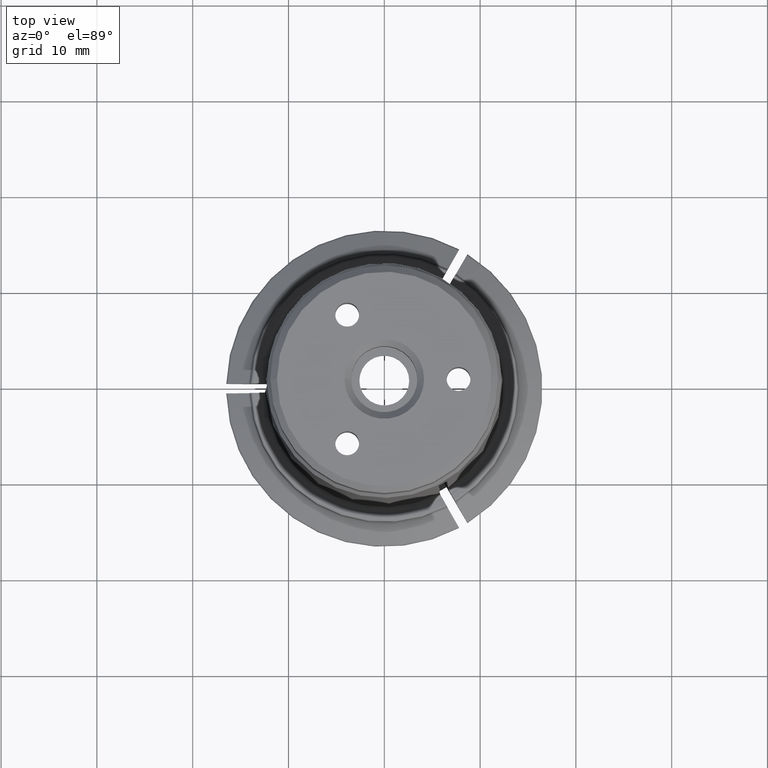
[diagram: clean part render]
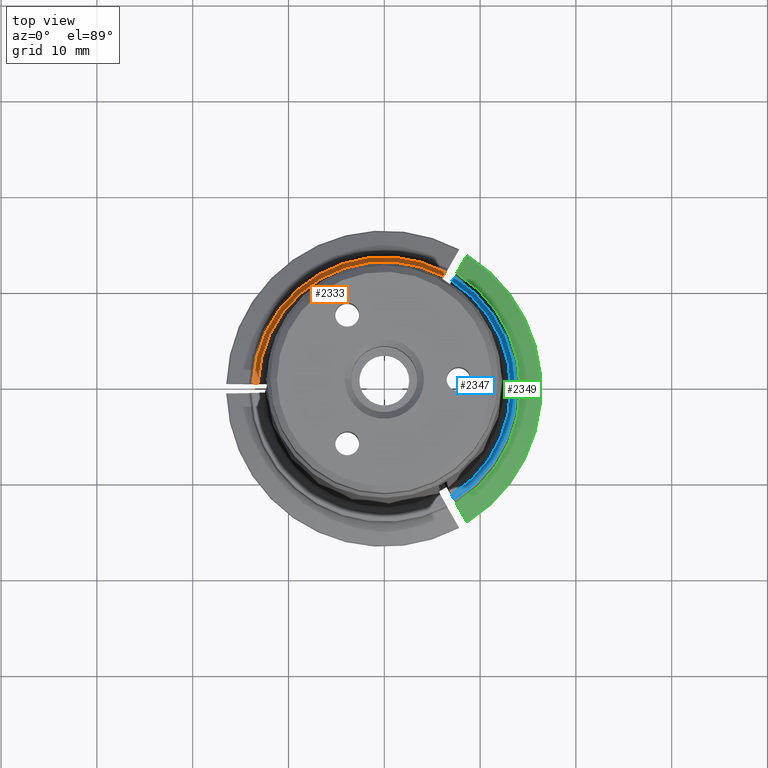
[diagram: same view with three faces highlighted in distinct colors, each labeled with its STEP entity id]
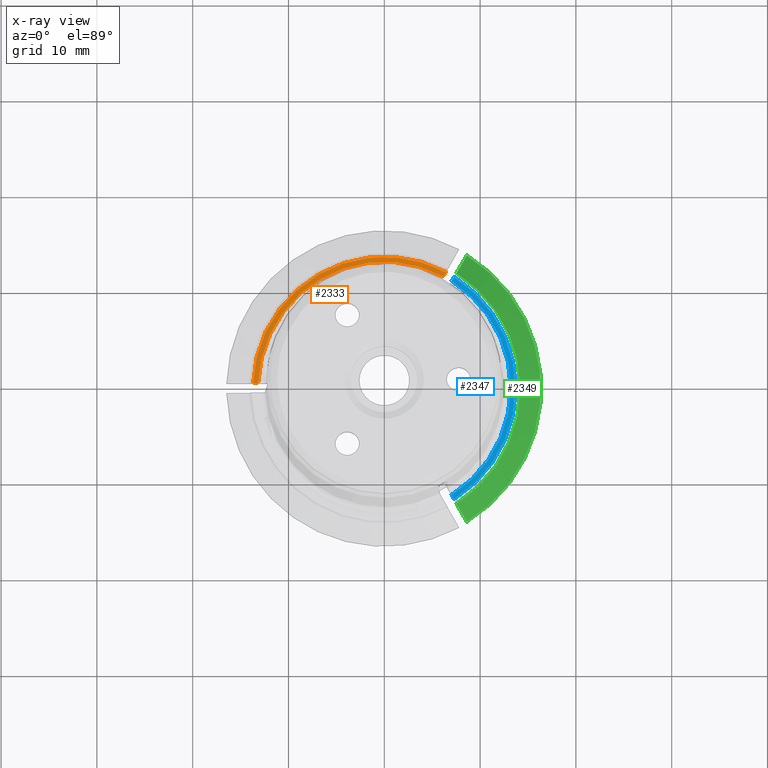
[diagram: x-ray of the same camera — body ghosted, the three highlighted faces saturated]
A machine part, top view with three faces highlighted in distinct colors.
The next image is the same camera in x-ray (body ghosted, the three faces saturated) — at least one of them is partly hidden behind the body in this view.
Their STEP definitions:

[orange] entity #2333 — the highlighted planar face has unit normal (0, 0, 1).
#38=LINE('',#3331,#113);
#51=LINE('',#3409,#126);
#113=VECTOR('',#2772,1000.);
#126=VECTOR('',#2807,1000.);
#188=PLANE('',#2489);
#305=CIRCLE('',#2488,13.1897915761656);
#306=CIRCLE('',#2490,13.7);
#534=ORIENTED_EDGE('',*,*,#964,.T.);
#535=ORIENTED_EDGE('',*,*,#922,.T.);
#536=ORIENTED_EDGE('',*,*,#963,.F.);
#537=ORIENTED_EDGE('',*,*,#950,.F.);
#922=EDGE_CURVE('',#1156,#1155,#38,.T.);
#950=EDGE_CURVE('',#1181,#1182,#51,.T.);
#963=EDGE_CURVE('',#1182,#1155,#305,.T.);
#964=EDGE_CURVE('',#1181,#1156,#306,.T.);
#1155=VERTEX_POINT('',#3330);
#1156=VERTEX_POINT('',#3332);
#1181=VERTEX_POINT('',#3408);
#1182=VERTEX_POINT('',#3410);
#1391=EDGE_LOOP('',(#534,#535,#536,#537));
#1529=FACE_BOUND('',#1391,.T.);
#2333=ADVANCED_FACE('',(#1529),#188,.T.);
#2488=AXIS2_PLACEMENT_3D('',#3441,#2830,#2831);
#2489=AXIS2_PLACEMENT_3D('',#3442,#2832,#2833);
#2490=AXIS2_PLACEMENT_3D('',#3443,#2834,#2835);
#2772=DIRECTION('',(1.,-5.55111512312578E-16,0.));
#2807=DIRECTION('',(-0.5,-0.866025403784439,0.));
#2830=DIRECTION('',(0.,0.,1.));
#2831=DIRECTION('',(1.,0.,0.));
#2832=DIRECTION('',(0.,0.,1.));
#2833=DIRECTION('',(1.,0.,0.));
#2834=DIRECTION('',(0.,0.,1.));
#2835=DIRECTION('',(1.,0.,0.));
#3330=CARTESIAN_POINT('',(-13.1803111428634,0.500000000000016,5.99999999999999));
#3331=CARTESIAN_POINT('',(13.1897915761656,0.5,6.));
#3332=CARTESIAN_POINT('',(-13.6908728720998,0.500000000000016,6.));
#3408=CARTESIAN_POINT('',(6.41242373415772,12.1066437072217,6.));
#3409=CARTESIAN_POINT('',(2.8644351921492,5.96134728779071,6.));
#3410=CARTESIAN_POINT('',(6.15714286953949,11.6644842795028,5.99999999999999));
#3441=CARTESIAN_POINT('',(0.,0.,6.));
#3442=CARTESIAN_POINT('',(13.1897915761656,0.,6.));
#3443=CARTESIAN_POINT('',(0.,0.,6.));

[blue] entity #2347 — the highlighted planar face has unit normal (0, 0, 1).
#65=LINE('',#3515,#140);
#66=LINE('',#3516,#141);
#140=VECTOR('',#2903,1000.);
#141=VECTOR('',#2904,1000.);
#189=PLANE('',#2519);
#321=CIRCLE('',#2518,13.1897915761656);
#322=CIRCLE('',#2520,13.7);
#594=ORIENTED_EDGE('',*,*,#991,.T.);
#595=ORIENTED_EDGE('',*,*,#992,.T.);
#596=ORIENTED_EDGE('',*,*,#988,.F.);
#597=ORIENTED_EDGE('',*,*,#993,.F.);
#988=EDGE_CURVE('',#1202,#1203,#321,.T.);
#991=EDGE_CURVE('',#1204,#1205,#322,.T.);
#992=EDGE_CURVE('',#1205,#1203,#65,.T.);
#993=EDGE_CURVE('',#1204,#1202,#66,.T.);
#1202=VERTEX_POINT('',#3499);
#1203=VERTEX_POINT('',#3500);
#1204=VERTEX_POINT('',#3513);
#1205=VERTEX_POINT('',#3514);
#1406=EDGE_LOOP('',(#594,#595,#596,#597));
#1544=FACE_BOUND('',#1406,.T.);
#2347=ADVANCED_FACE('',(#1544),#189,.T.);
#2518=AXIS2_PLACEMENT_3D('',#3498,#2897,#2898);
#2519=AXIS2_PLACEMENT_3D('',#3511,#2899,#2900);
#2520=AXIS2_PLACEMENT_3D('',#3512,#2901,#2902);
#2897=DIRECTION('',(0.,0.,1.));
#2898=DIRECTION('',(1.,0.,0.));
#2899=DIRECTION('',(0.,0.,1.));
#2900=DIRECTION('',(1.,0.,0.));
#2901=DIRECTION('',(0.,0.,1.));
#2902=DIRECTION('',(1.,0.,0.));
#2903=DIRECTION('',(-0.5,-0.866025403784439,0.));
#2904=DIRECTION('',(-0.5,0.866025403784439,0.));
#3498=CARTESIAN_POINT('',(0.,0.,6.));
#3499=CARTESIAN_POINT('',(7.02316827332392,-11.1644842795028,5.99999999999999));
#3500=CARTESIAN_POINT('',(7.02316827332393,11.1644842795028,6.));
#3511=CARTESIAN_POINT('',(13.1897915761656,0.,6.));
#3512=CARTESIAN_POINT('',(0.,0.,6.));
#3513=CARTESIAN_POINT('',(7.27844913794215,-11.6066437072217,6.));
#3514=CARTESIAN_POINT('',(7.27844913794224,11.6066437072218,6.00000000000073));
#3515=CARTESIAN_POINT('',(3.73046059593364,5.46134728779071,6.));
#3516=CARTESIAN_POINT('',(3.73046059593363,-5.46134728779072,6.));

[green] entity #2349 — the highlighted conical surface has half-angle 60 deg.
#246=CONICAL_SURFACE('',#2524,14.,1.0471975511966);
#325=CIRCLE('',#2525,16.35);
#326=CIRCLE('',#2526,37333.3663058709);
#327=CIRCLE('',#2527,14.2);
#328=CIRCLE('',#2528,37333.3663414916);
#602=ORIENTED_EDGE('',*,*,#998,.T.);
#603=ORIENTED_EDGE('',*,*,#999,.T.);
#604=ORIENTED_EDGE('',*,*,#1000,.T.);
#605=ORIENTED_EDGE('',*,*,#1001,.F.);
#998=EDGE_CURVE('',#1210,#1211,#325,.T.);
#999=EDGE_CURVE('',#1211,#1212,#326,.T.);
#1000=EDGE_CURVE('',#1212,#1213,#327,.T.);
#1001=EDGE_CURVE('',#1210,#1213,#328,.T.);
#1210=VERTEX_POINT('',#3528);
#1211=VERTEX_POINT('',#3529);
#1212=VERTEX_POINT('',#3531);
#1213=VERTEX_POINT('',#3533);
#1408=EDGE_LOOP('',(#602,#603,#604,#605));
#1546=FACE_BOUND('',#1408,.T.);
#2349=ADVANCED_FACE('',(#1546),#246,.T.);
#2524=AXIS2_PLACEMENT_3D('',#3526,#2913,#2914);
#2525=AXIS2_PLACEMENT_3D('',#3527,#2915,#2916);
#2526=AXIS2_PLACEMENT_3D('',#3530,#2917,#2918);
#2527=AXIS2_PLACEMENT_3D('',#3532,#2919,#2920);
#2528=AXIS2_PLACEMENT_3D('',#3534,#2921,#2922);
#2913=DIRECTION('',(0.,0.,-1.));
#2914=DIRECTION('',(-1.,0.,0.));
#2915=DIRECTION('',(0.,0.,1.));
#2916=DIRECTION('',(1.,0.,0.));
#2917=DIRECTION('',(0.866025403783277,-0.500000000002013,-3.3377516839686E-12));
#2918=DIRECTION('',(0.249913407070597,0.432862718530811,0.866125369604471));
#2919=DIRECTION('',(0.,0.,-1.));
#2920=DIRECTION('',(-1.,0.,0.));
#2921=DIRECTION('',(-0.866025403997067,-0.499999999631718,-7.3597424561035E-10));
#2922=DIRECTION('',(0.249913406330957,-0.432862718957824,0.86612536960448));
#3526=CARTESIAN_POINT('',(0.,0.,4.));
#3527=CARTESIAN_POINT('',(0.,0.,2.64322686740437));
#3528=CARTESIAN_POINT('',(8.60418917777387,-13.9028928138386,2.64322686740504));
#3529=CARTESIAN_POINT('',(8.60418917777378,13.9028928138384,2.64322686740438));
#3530=CARTESIAN_POINT('',(-9321.50458173704,-16146.319538252,-32332.7324633842));
#3531=CARTESIAN_POINT('',(7.52860992834162,12.0399349062554,3.8845299461624));
#3532=CARTESIAN_POINT('',(0.,0.,3.88452994616208));
#3533=CARTESIAN_POINT('',(7.52860992834187,-12.0399349062556,3.88452994616208));
#3534=CARTESIAN_POINT('',(-9321.5045630259,16146.3195696127,-32332.7324942365));